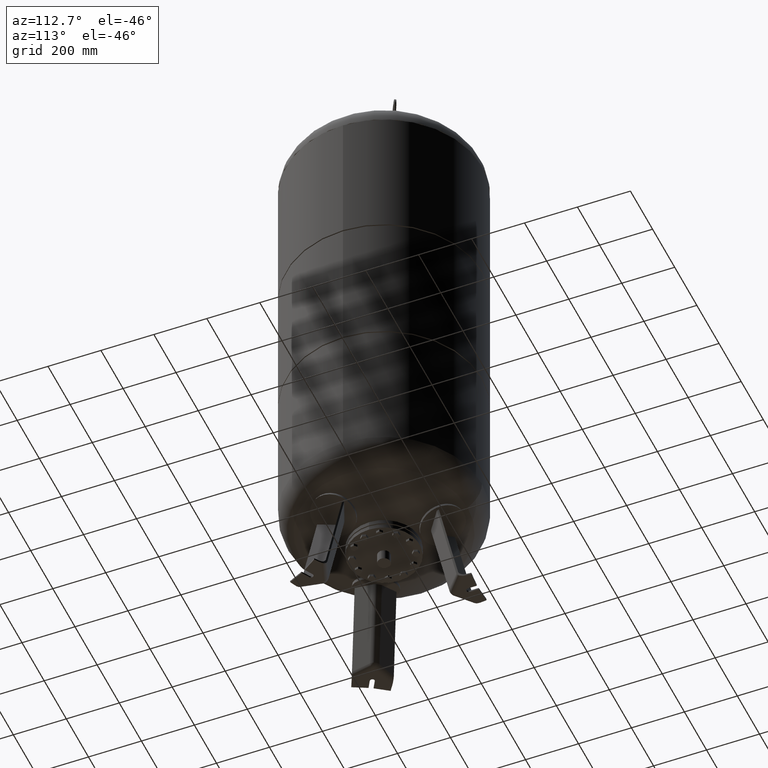
[diagram: clean part render]
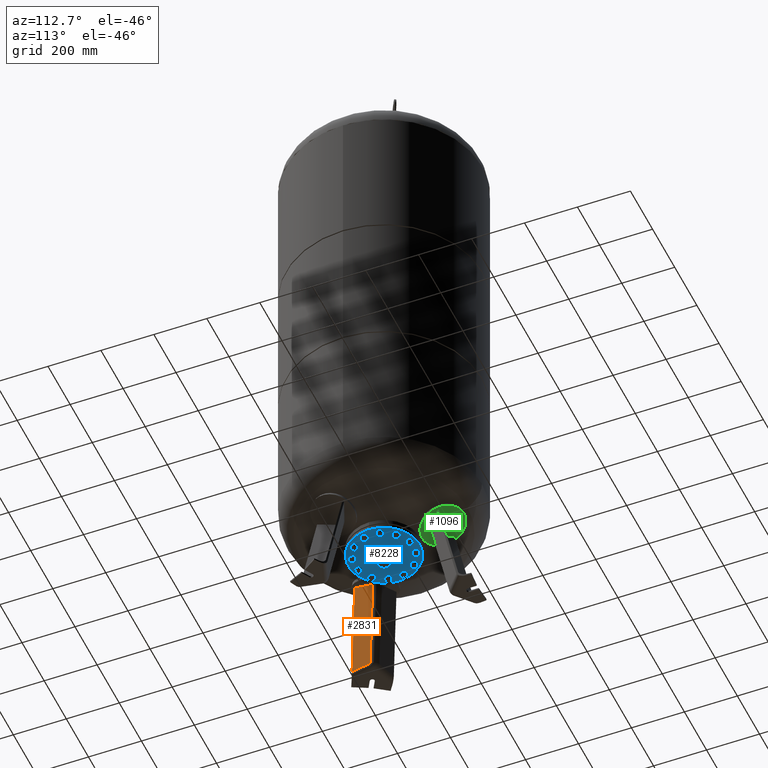
[diagram: same view with three faces highlighted in distinct colors, each labeled with its STEP entity id]
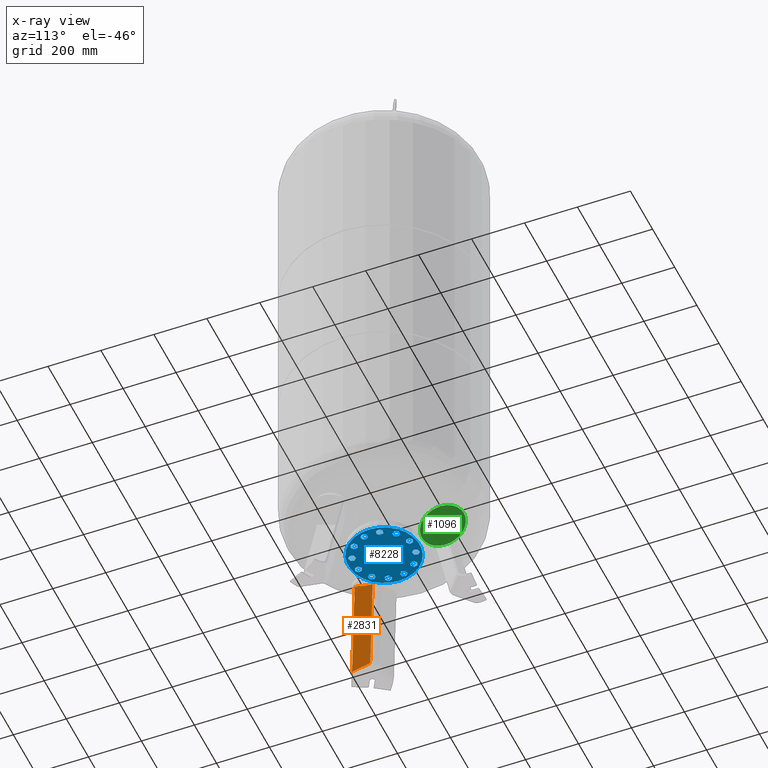
[diagram: x-ray of the same camera — body ghosted, the three highlighted faces saturated]
A machine part, auxiliary view with three faces highlighted in distinct colors.
The next image is the same camera in x-ray (body ghosted, the three faces saturated) — at least one of them is partly hidden behind the body in this view.
Their STEP definitions:

[orange] entity #2831 — the highlighted planar face has unit normal (0.9697, -0.1854, -0.1588).
#2148=CARTESIAN_POINT('',(-212.310092040547910,-141.210057248237430,21.029948423057281));
#2149=VERTEX_POINT('',#2148);
#2216=CARTESIAN_POINT('',(-162.367665870318090,-178.613505168794490,369.683830982885010));
#2217=VERTEX_POINT('',#2216);
#2225=CARTESIAN_POINT('',(-152.493107836384980,-106.674705315852450,345.982061508122970));
#2226=VERTEX_POINT('',#2225);
#2227=CARTESIAN_POINT('',(-152.493107836384980,-106.674705315852450,345.982061508122970));
#2228=CARTESIAN_POINT('',(-153.003537404700840,-110.175965198482400,346.953435462919860));
#2229=CARTESIAN_POINT('',(-153.509677728166280,-113.682305909172020,347.956934926011120));
#2230=CARTESIAN_POINT('',(-155.038434818138400,-124.369933104338800,351.101192125903480));
#2231=CARTESIAN_POINT('',(-156.048713479697880,-131.566367909792260,353.334982197884360));
#2232=CARTESIAN_POINT('',(-158.872911095725700,-152.034252945903320,359.988747504562350));
#2233=CARTESIAN_POINT('',(-160.649463305811250,-165.333219986767150,364.669037481009410));
#2234=CARTESIAN_POINT('',(-162.367665870318090,-178.613505168794490,369.683830982885010));
#2235=B_SPLINE_CURVE_WITH_KNOTS('',3,(#2227,#2228,#2229,#2230,#2231,#2232,#2233,#2234),.UNSPECIFIED.,.F.,.U.,(4,2,2,4),(5.453253502265779,6.515864870681246,8.687819827574995,12.681292855444173),.UNSPECIFIED.);
#2236=EDGE_CURVE('',#2226,#2217,#2235,.T.);
#2314=CARTESIAN_POINT('',(-226.547657155193120,-215.667840413704770,21.029948423057284));
#2315=VERTEX_POINT('',#2314);
#2316=CARTESIAN_POINT('',(-212.310092040547910,-141.210057248237430,21.029948423057281));
#2317=DIRECTION('',(-0.187813845079450,-0.982204642422582,4.686537E-017));
#2318=VECTOR('',#2317,75.806792138366546);
#2319=LINE('',#2316,#2318);
#2320=EDGE_CURVE('',#2149,#2315,#2319,.T.);
#2796=CARTESIAN_POINT('',(-226.547657155193120,-215.667840413704770,21.029948423057284));
#2797=DIRECTION('',(0.180056805991956,0.103955845408880,0.978147600733806));
#2798=VECTOR('',#2797,356.443017698216290);
#2799=LINE('',#2796,#2798);
#2800=EDGE_CURVE('',#2315,#2217,#2799,.T.);
#2815=CARTESIAN_POINT('',(-224.644894962710770,-129.698790578796260,-67.735293817669458));
#2816=DIRECTION('',(0.969740897595359,-0.185430570007245,-0.158802063077709));
#2817=DIRECTION('',(-0.180056805991956,-0.103955845408880,-0.978147600733806));
#2818=AXIS2_PLACEMENT_3D('',#2815,#2816,#2817);
#2819=PLANE('',#2818);
#2820=CARTESIAN_POINT('',(-152.493107836384980,-106.674705315852450,345.982061508122970));
#2821=DIRECTION('',(-0.180056805991956,-0.103955845408880,-0.978147600733805));
#2822=VECTOR('',#2821,332.211736594034330);
#2823=LINE('',#2820,#2822);
#2824=EDGE_CURVE('',#2226,#2149,#2823,.T.);
#2825=ORIENTED_EDGE('',*,*,#2824,.F.);
#2826=ORIENTED_EDGE('',*,*,#2236,.T.);
#2827=ORIENTED_EDGE('',*,*,#2800,.F.);
#2828=ORIENTED_EDGE('',*,*,#2320,.F.);
#2829=EDGE_LOOP('',(#2825,#2826,#2827,#2828));
#2830=FACE_OUTER_BOUND('',#2829,.T.);
#2831=ADVANCED_FACE('',(#2830),#2819,.T.);

[blue] entity #8228 — the highlighted planar face has unit normal (0, 0, -1).
#3042=CARTESIAN_POINT('',(135.0,-2.449294E-015,303.0));
#3043=VERTEX_POINT('',#3042);
#3059=CARTESIAN_POINT('',(-135.0,-1.898148E-014,303.0));
#3060=VERTEX_POINT('',#3059);
#3067=CARTESIAN_POINT('',(0.0,-2.449294E-015,303.0));
#3068=DIRECTION('',(0.0,0.0,1.0));
#3069=DIRECTION('',(1.0,0.0,0.0));
#3070=AXIS2_PLACEMENT_3D('',#3067,#3068,#3069);
#3071=CIRCLE('',#3070,135.0);
#3072=EDGE_CURVE('',#3060,#3043,#3071,.T.);
#4632=CARTESIAN_POINT('',(-24.149999999999999,-2.449294E-015,303.0));
#4633=VERTEX_POINT('',#4632);
#4649=CARTESIAN_POINT('',(24.149999999999999,-5.406816E-015,303.0));
#4650=VERTEX_POINT('',#4649);
#4657=CARTESIAN_POINT('',(0.0,-2.449294E-015,303.0));
#4658=DIRECTION('',(0.0,0.0,1.0));
#4659=DIRECTION('',(-1.0,0.0,0.0));
#4660=AXIS2_PLACEMENT_3D('',#4657,#4658,#4659);
#4661=CIRCLE('',#4660,24.149999999999999);
#4662=EDGE_CURVE('',#4633,#4650,#4661,.T.);
#4673=CARTESIAN_POINT('',(0.0,-2.449294E-015,303.0));
#4674=DIRECTION('',(0.0,0.0,1.0));
#4675=DIRECTION('',(-1.0,0.0,0.0));
#4676=AXIS2_PLACEMENT_3D('',#4673,#4674,#4675);
#4677=CIRCLE('',#4676,24.149999999999999);
#4678=EDGE_CURVE('',#4650,#4633,#4677,.T.);
#5718=CARTESIAN_POINT('',(-104.371630473436160,15.943200097079567,303.0));
#5719=VERTEX_POINT('',#5718);
#5720=CARTESIAN_POINT('',(-95.110174112441044,26.249772081662250,303.0));
#5721=VERTEX_POINT('',#5720);
#5722=CARTESIAN_POINT('',(-104.371630473436160,15.943200097079567,303.0));
#5723=DIRECTION('',(0.668388040388560,0.743812763715131,0.0));
#5724=VECTOR('',#5723,13.856406460551071);
#5725=LINE('',#5722,#5724);
#5726=EDGE_CURVE('',#5719,#5721,#5725,.T.);
#5758=CARTESIAN_POINT('',(-117.928111818515250,18.810570589450993,303.0));
#5759=VERTEX_POINT('',#5758);
#5760=CARTESIAN_POINT('',(-117.928111818515250,18.810570589450993,303.0));
#5761=DIRECTION('',(0.978354769230695,-0.206934640704629,0.0));
#5762=VECTOR('',#5761,13.856406460551010);
#5763=LINE('',#5760,#5762);
#5764=EDGE_CURVE('',#5759,#5719,#5763,.T.);
#5789=CARTESIAN_POINT('',(-122.223136802599300,31.984513066405068,303.0));
#5790=VERTEX_POINT('',#5789);
#5791=CARTESIAN_POINT('',(-122.223136802599300,31.984513066405068,303.0));
#5792=DIRECTION('',(0.309966728842136,-0.950747404419757,0.0));
#5793=VECTOR('',#5792,13.856406460551057);
#5794=LINE('',#5791,#5793);
#5795=EDGE_CURVE('',#5790,#5759,#5794,.T.);
#5820=CARTESIAN_POINT('',(-99.405199096525067,39.423714558616311,303.0));
#5821=VERTEX_POINT('',#5820);
#5822=CARTESIAN_POINT('',(-95.110174112441044,26.249772081662250,303.0));
#5823=DIRECTION('',(-0.309966728842134,0.950747404419758,0.0));
#5824=VECTOR('',#5823,13.856406460551035);
#5825=LINE('',#5822,#5824);
#5826=EDGE_CURVE('',#5721,#5821,#5825,.T.);
#5851=CARTESIAN_POINT('',(-112.961680441604220,42.291085050987718,303.0));
#5852=VERTEX_POINT('',#5851);
#5853=CARTESIAN_POINT('',(-99.405199096525067,39.423714558616311,303.0));
#5854=DIRECTION('',(-0.978354769230695,0.206934640704627,0.0));
#5855=VECTOR('',#5854,13.856406460551062);
#5856=LINE('',#5853,#5855);
#5857=EDGE_CURVE('',#5821,#5852,#5856,.T.);
#5882=CARTESIAN_POINT('',(-112.961680441604220,42.291085050987718,303.0));
#5883=DIRECTION('',(-0.668388040388560,-0.743812763715131,0.0));
#5884=VECTOR('',#5883,13.856406460551026);
#5885=LINE('',#5882,#5884);
#5886=EDGE_CURVE('',#5852,#5790,#5885,.T.);
#5918=CARTESIAN_POINT('',(-82.416883375857964,65.993031538407521,303.0));
#5919=VERTEX_POINT('',#5918);
#5920=CARTESIAN_POINT('',(-69.242940898903882,70.288056522491587,303.0));
#5921=VERTEX_POINT('',#5920);
#5922=CARTESIAN_POINT('',(-82.416883375857964,65.993031538407521,303.0));
#5923=DIRECTION('',(0.950747404419757,0.309966728842137,0.0));
#5924=VECTOR('',#5923,13.856406460551069);
#5925=LINE('',#5922,#5924);
#5926=EDGE_CURVE('',#5919,#5921,#5925,.T.);
#5958=CARTESIAN_POINT('',(-92.723455360440582,75.254487899402648,303.0));
#5959=VERTEX_POINT('',#5958);
#5960=CARTESIAN_POINT('',(-92.723455360440582,75.254487899402648,303.0));
#5961=DIRECTION('',(0.743812763715128,-0.668388040388563,0.0));
#5962=VECTOR('',#5961,13.856406460551032);
#5963=LINE('',#5960,#5962);
#5964=EDGE_CURVE('',#5959,#5919,#5963,.T.);
#5989=CARTESIAN_POINT('',(-89.856084868069175,88.810969244481754,303.0));
#5990=VERTEX_POINT('',#5989);
#5991=CARTESIAN_POINT('',(-89.856084868069175,88.810969244481754,303.0));
#5992=DIRECTION('',(-0.206934640704628,-0.978354769230695,0.0));
#5993=VECTOR('',#5992,13.856406460551021);
#5994=LINE('',#5991,#5993);
#5995=EDGE_CURVE('',#5990,#5959,#5994,.T.);
#6020=CARTESIAN_POINT('',(-66.375570406532475,83.844537867570708,303.0));
#6021=VERTEX_POINT('',#6020);
#6022=CARTESIAN_POINT('',(-69.242940898903882,70.288056522491587,303.0));
#6023=DIRECTION('',(0.206934640704627,0.978354769230695,0.0));
#6024=VECTOR('',#6023,13.856406460551035);
#6025=LINE('',#6022,#6024);
#6026=EDGE_CURVE('',#5921,#6021,#6025,.T.);
#6051=CARTESIAN_POINT('',(-76.682142391115121,93.105994228565805,303.0));
#6052=VERTEX_POINT('',#6051);
#6053=CARTESIAN_POINT('',(-66.375570406532475,83.844537867570708,303.0));
#6054=DIRECTION('',(-0.743812763715130,0.668388040388561,0.0));
#6055=VECTOR('',#6054,13.856406460551034);
#6056=LINE('',#6053,#6055);
#6057=EDGE_CURVE('',#6021,#6052,#6056,.T.);
#6082=CARTESIAN_POINT('',(-76.682142391115121,93.105994228565805,303.0));
#6083=DIRECTION('',(-0.950747404419757,-0.309966728842137,0.0));
#6084=VECTOR('',#6083,13.856406460551037);
#6085=LINE('',#6082,#6084);
#6086=EDGE_CURVE('',#6052,#5990,#6085,.T.);
#6118=CARTESIAN_POINT('',(-38.378598935028677,98.360083472937561,303.0));
#6119=VERTEX_POINT('',#6118);
#6120=CARTESIAN_POINT('',(-24.822117589949517,95.492712980566154,303.0));
#6121=VERTEX_POINT('',#6120);
#6122=CARTESIAN_POINT('',(-38.378598935028677,98.360083472937561,303.0));
#6123=DIRECTION('',(0.978354769230695,-0.206934640704627,0.0));
#6124=VECTOR('',#6123,13.856406460551073);
#6125=LINE('',#6122,#6124);
#6126=EDGE_CURVE('',#6119,#6121,#6125,.T.);
#6158=CARTESIAN_POINT('',(-42.673623919112671,111.534025949891600,303.0));
#6159=VERTEX_POINT('',#6158);
#6160=CARTESIAN_POINT('',(-42.673623919112671,111.534025949891600,303.0));
#6161=DIRECTION('',(0.309966728842133,-0.950747404419758,0.0));
#6162=VECTOR('',#6161,13.856406460551005);
#6163=LINE('',#6160,#6162);
#6164=EDGE_CURVE('',#6159,#6119,#6163,.T.);
#6189=CARTESIAN_POINT('',(-33.412167558117581,121.840597934474250,303.0));
#6190=VERTEX_POINT('',#6189);
#6191=CARTESIAN_POINT('',(-33.412167558117581,121.840597934474250,303.0));
#6192=DIRECTION('',(-0.668388040388560,-0.743812763715130,0.0));
#6193=VECTOR('',#6192,13.856406460551028);
#6194=LINE('',#6191,#6193);
#6195=EDGE_CURVE('',#6190,#6159,#6194,.T.);
#6220=CARTESIAN_POINT('',(-15.560661228954427,105.799284965148810,303.0));
#6221=VERTEX_POINT('',#6220);
#6222=CARTESIAN_POINT('',(-24.822117589949517,95.492712980566154,303.0));
#6223=DIRECTION('',(0.668388040388560,0.743812763715131,0.0));
#6224=VECTOR('',#6223,13.856406460551041);
#6225=LINE('',#6222,#6224);
#6226=EDGE_CURVE('',#6121,#6221,#6225,.T.);
#6251=CARTESIAN_POINT('',(-19.855686213038453,118.973227442102850,303.0));
#6252=VERTEX_POINT('',#6251);
#6253=CARTESIAN_POINT('',(-15.560661228954427,105.799284965148810,303.0));
#6254=DIRECTION('',(-0.309966728842135,0.950747404419758,0.0));
#6255=VECTOR('',#6254,13.856406460551016);
#6256=LINE('',#6253,#6255);
#6257=EDGE_CURVE('',#6221,#6252,#6256,.T.);
#6282=CARTESIAN_POINT('',(-19.855686213038453,118.973227442102850,303.0));
#6283=DIRECTION('',(-0.978354769230695,0.206934640704626,0.0));
#6284=VECTOR('',#6283,13.856406460551039);
#6285=LINE('',#6282,#6284);
#6286=EDGE_CURVE('',#6252,#6190,#6285,.T.);
#6318=CARTESIAN_POINT('',(15.943200097079568,104.371630473436160,303.0));
#6319=VERTEX_POINT('',#6318);
#6320=CARTESIAN_POINT('',(26.249772081662254,95.110174112441044,303.0));
#6321=VERTEX_POINT('',#6320);
#6322=CARTESIAN_POINT('',(15.943200097079568,104.371630473436160,303.0));
#6323=DIRECTION('',(0.743812763715131,-0.668388040388560,0.0));
#6324=VECTOR('',#6323,13.856406460551073);
#6325=LINE('',#6322,#6324);
#6326=EDGE_CURVE('',#6319,#6321,#6325,.T.);
#6358=CARTESIAN_POINT('',(18.810570589450997,117.928111818515250,303.0));
#6359=VERTEX_POINT('',#6358);
#6360=CARTESIAN_POINT('',(18.810570589450997,117.928111818515250,303.0));
#6361=DIRECTION('',(-0.206934640704629,-0.978354769230695,0.0));
#6362=VECTOR('',#6361,13.856406460551010);
#6363=LINE('',#6360,#6362);
#6364=EDGE_CURVE('',#6359,#6319,#6363,.T.);
#6389=CARTESIAN_POINT('',(31.984513066405071,122.223136802599300,303.0));
#6390=VERTEX_POINT('',#6389);
#6391=CARTESIAN_POINT('',(31.984513066405071,122.223136802599300,303.0));
#6392=DIRECTION('',(-0.950747404419757,-0.309966728842136,0.0));
#6393=VECTOR('',#6392,13.856406460551057);
#6394=LINE('',#6391,#6393);
#6395=EDGE_CURVE('',#6390,#6359,#6394,.T.);
#6420=CARTESIAN_POINT('',(39.423714558616311,99.405199096525067,303.0));
#6421=VERTEX_POINT('',#6420);
#6422=CARTESIAN_POINT('',(26.249772081662254,95.110174112441044,303.0));
#6423=DIRECTION('',(0.950747404419758,0.309966728842135,0.0));
#6424=VECTOR('',#6423,13.856406460551032);
#6425=LINE('',#6422,#6424);
#6426=EDGE_CURVE('',#6321,#6421,#6425,.T.);
#6451=CARTESIAN_POINT('',(42.291085050987718,112.961680441604220,303.0));
#6452=VERTEX_POINT('',#6451);
#6453=CARTESIAN_POINT('',(39.423714558616311,99.405199096525067,303.0));
#6454=DIRECTION('',(0.206934640704627,0.978354769230695,0.0));
#6455=VECTOR('',#6454,13.856406460551062);
#6456=LINE('',#6453,#6455);
#6457=EDGE_CURVE('',#6421,#6452,#6456,.T.);
#6482=CARTESIAN_POINT('',(42.291085050987718,112.961680441604220,303.0));
#6483=DIRECTION('',(-0.743812763715131,0.668388040388560,0.0));
#6484=VECTOR('',#6483,13.856406460551025);
#6485=LINE('',#6482,#6484);
#6486=EDGE_CURVE('',#6452,#6390,#6485,.T.);
#6518=CARTESIAN_POINT('',(65.993031538407507,82.416883375857992,303.0));
#6519=VERTEX_POINT('',#6518);
#6520=CARTESIAN_POINT('',(70.288056522491544,69.242940898903896,303.0));
#6521=VERTEX_POINT('',#6520);
#6522=CARTESIAN_POINT('',(65.993031538407507,82.416883375857992,303.0));
#6523=DIRECTION('',(0.309966728842135,-0.950747404419758,0.0));
#6524=VECTOR('',#6523,13.856406460551073);
#6525=LINE('',#6522,#6524);
#6526=EDGE_CURVE('',#6519,#6521,#6525,.T.);
#6558=CARTESIAN_POINT('',(75.254487899402591,92.723455360440624,303.0));
#6559=VERTEX_POINT('',#6558);
#6560=CARTESIAN_POINT('',(75.254487899402591,92.723455360440624,303.0));
#6561=DIRECTION('',(-0.668388040388561,-0.743812763715130,0.0));
#6562=VECTOR('',#6561,13.856406460551014);
#6563=LINE('',#6560,#6562);
#6564=EDGE_CURVE('',#6559,#6519,#6563,.T.);
#6589=CARTESIAN_POINT('',(88.810969244481726,89.856084868069217,303.0));
#6590=VERTEX_POINT('',#6589);
#6591=CARTESIAN_POINT('',(88.810969244481726,89.856084868069217,303.0));
#6592=DIRECTION('',(-0.978354769230695,0.206934640704627,0.0));
#6593=VECTOR('',#6592,13.856406460551048);
#6594=LINE('',#6591,#6593);
#6595=EDGE_CURVE('',#6590,#6559,#6594,.T.);
#6620=CARTESIAN_POINT('',(83.844537867570665,66.375570406532503,303.0));
#6621=VERTEX_POINT('',#6620);
#6622=CARTESIAN_POINT('',(70.288056522491544,69.242940898903896,303.0));
#6623=DIRECTION('',(0.978354769230695,-0.206934640704626,0.0));
#6624=VECTOR('',#6623,13.856406460551032);
#6625=LINE('',#6622,#6624);
#6626=EDGE_CURVE('',#6521,#6621,#6625,.T.);
#6651=CARTESIAN_POINT('',(93.105994228565763,76.682142391115150,303.0));
#6652=VERTEX_POINT('',#6651);
#6653=CARTESIAN_POINT('',(83.844537867570665,66.375570406532503,303.0));
#6654=DIRECTION('',(0.668388040388561,0.743812763715130,0.0));
#6655=VECTOR('',#6654,13.856406460551034);
#6656=LINE('',#6653,#6655);
#6657=EDGE_CURVE('',#6621,#6652,#6656,.T.);
#6682=CARTESIAN_POINT('',(93.105994228565763,76.682142391115150,303.0));
#6683=DIRECTION('',(-0.309966728842135,0.950747404419758,0.0));
#6684=VECTOR('',#6683,13.856406460551044);
#6685=LINE('',#6682,#6684);
#6686=EDGE_CURVE('',#6652,#6590,#6685,.T.);
#6718=CARTESIAN_POINT('',(98.360083472937561,38.378598935028677,303.0));
#6719=VERTEX_POINT('',#6718);
#6720=CARTESIAN_POINT('',(95.492712980566154,24.822117589949517,303.0));
#6721=VERTEX_POINT('',#6720);
#6722=CARTESIAN_POINT('',(98.360083472937561,38.378598935028677,303.0));
#6723=DIRECTION('',(-0.206934640704627,-0.978354769230695,0.0));
#6724=VECTOR('',#6723,13.856406460551073);
#6725=LINE('',#6722,#6724);
#6726=EDGE_CURVE('',#6719,#6721,#6725,.T.);
#6758=CARTESIAN_POINT('',(111.534025949891600,42.673623919112686,303.0));
#6759=VERTEX_POINT('',#6758);
#6760=CARTESIAN_POINT('',(111.534025949891600,42.673623919112686,303.0));
#6761=DIRECTION('',(-0.950747404419758,-0.309966728842134,0.0));
#6762=VECTOR('',#6761,13.856406460551010);
#6763=LINE('',#6760,#6762);
#6764=EDGE_CURVE('',#6759,#6719,#6763,.T.);
#6789=CARTESIAN_POINT('',(121.840597934474250,33.412167558117595,303.0));
#6790=VERTEX_POINT('',#6789);
#6791=CARTESIAN_POINT('',(121.840597934474250,33.412167558117595,303.0));
#6792=DIRECTION('',(-0.743812763715130,0.668388040388560,0.0));
#6793=VECTOR('',#6792,13.856406460551028);
#6794=LINE('',#6791,#6793);
#6795=EDGE_CURVE('',#6790,#6759,#6794,.T.);
#6820=CARTESIAN_POINT('',(105.799284965148800,15.560661228954428,303.0));
#6821=VERTEX_POINT('',#6820);
#6822=CARTESIAN_POINT('',(95.492712980566154,24.822117589949517,303.0));
#6823=DIRECTION('',(0.743812763715130,-0.668388040388560,0.0));
#6824=VECTOR('',#6823,13.856406460551028);
#6825=LINE('',#6822,#6824);
#6826=EDGE_CURVE('',#6721,#6821,#6825,.T.);
#6851=CARTESIAN_POINT('',(118.973227442102840,19.855686213038460,303.0));
#6852=VERTEX_POINT('',#6851);
#6853=CARTESIAN_POINT('',(105.799284965148800,15.560661228954428,303.0));
#6854=DIRECTION('',(0.950747404419757,0.309966728842136,0.0));
#6855=VECTOR('',#6854,13.856406460551018);
#6856=LINE('',#6853,#6855);
#6857=EDGE_CURVE('',#6821,#6852,#6856,.T.);
#6882=CARTESIAN_POINT('',(118.973227442102840,19.855686213038460,303.0));
#6883=DIRECTION('',(0.206934640704627,0.978354769230695,0.0));
#6884=VECTOR('',#6883,13.856406460551048);
#6885=LINE('',#6882,#6884);
#6886=EDGE_CURVE('',#6852,#6790,#6885,.T.);
#6918=CARTESIAN_POINT('',(104.371630473436170,-15.943200097079561,303.0));
#6919=VERTEX_POINT('',#6918);
#6920=CARTESIAN_POINT('',(95.110174112441058,-26.249772081662240,303.0));
#6921=VERTEX_POINT('',#6920);
#6922=CARTESIAN_POINT('',(104.371630473436170,-15.943200097079561,303.0));
#6923=DIRECTION('',(-0.668388040388560,-0.743812763715131,0.0));
#6924=VECTOR('',#6923,13.856406460551067);
#6925=LINE('',#6922,#6924);
#6926=EDGE_CURVE('',#6919,#6921,#6925,.T.);
#6958=CARTESIAN_POINT('',(117.928111818515260,-18.810570589450993,303.0));
#6959=VERTEX_POINT('',#6958);
#6960=CARTESIAN_POINT('',(117.928111818515260,-18.810570589450993,303.0));
#6961=DIRECTION('',(-0.978354769230695,0.206934640704630,0.0));
#6962=VECTOR('',#6961,13.856406460551012);
#6963=LINE('',#6960,#6962);
#6964=EDGE_CURVE('',#6959,#6919,#6963,.T.);
#6989=CARTESIAN_POINT('',(122.223136802599300,-31.984513066405047,303.0));
#6990=VERTEX_POINT('',#6989);
#6991=CARTESIAN_POINT('',(122.223136802599300,-31.984513066405047,303.0));
#6992=DIRECTION('',(-0.309966728842136,0.950747404419758,0.0));
#6993=VECTOR('',#6992,13.856406460551032);
#6994=LINE('',#6991,#6993);
#6995=EDGE_CURVE('',#6990,#6959,#6994,.T.);
#7020=CARTESIAN_POINT('',(99.405199096525081,-39.423714558616304,303.0));
#7021=VERTEX_POINT('',#7020);
#7022=CARTESIAN_POINT('',(95.110174112441058,-26.249772081662240,303.0));
#7023=DIRECTION('',(0.309966728842134,-0.950747404419758,0.0));
#7024=VECTOR('',#7023,13.856406460551037);
#7025=LINE('',#7022,#7024);
#7026=EDGE_CURVE('',#6921,#7021,#7025,.T.);
#7051=CARTESIAN_POINT('',(112.961680441604220,-42.291085050987704,303.0));
#7052=VERTEX_POINT('',#7051);
#7053=CARTESIAN_POINT('',(99.405199096525081,-39.423714558616304,303.0));
#7054=DIRECTION('',(0.978354769230695,-0.206934640704627,0.0));
#7055=VECTOR('',#7054,13.856406460551046);
#7056=LINE('',#7053,#7055);
#7057=EDGE_CURVE('',#7021,#7052,#7056,.T.);
#7082=CARTESIAN_POINT('',(112.961680441604220,-42.291085050987704,303.0));
#7083=DIRECTION('',(0.668388040388560,0.743812763715131,0.0));
#7084=VECTOR('',#7083,13.856406460551034);
#7085=LINE('',#7082,#7084);
#7086=EDGE_CURVE('',#7052,#6990,#7085,.T.);
#7118=CARTESIAN_POINT('',(82.416883375857992,-65.993031538407507,303.0));
#7119=VERTEX_POINT('',#7118);
#7120=CARTESIAN_POINT('',(69.242940898903910,-70.288056522491530,303.0));
#7121=VERTEX_POINT('',#7120);
#7122=CARTESIAN_POINT('',(82.416883375857992,-65.993031538407507,303.0));
#7123=DIRECTION('',(-0.950747404419758,-0.309966728842134,0.0));
#7124=VECTOR('',#7123,13.856406460551055);
#7125=LINE('',#7122,#7124);
#7126=EDGE_CURVE('',#7119,#7121,#7125,.T.);
#7158=CARTESIAN_POINT('',(92.723455360440624,-75.254487899402591,303.0));
#7159=VERTEX_POINT('',#7158);
#7160=CARTESIAN_POINT('',(92.723455360440624,-75.254487899402591,303.0));
#7161=DIRECTION('',(-0.743812763715130,0.668388040388561,0.0));
#7162=VECTOR('',#7161,13.856406460551014);
#7163=LINE('',#7160,#7162);
#7164=EDGE_CURVE('',#7159,#7119,#7163,.T.);
#7189=CARTESIAN_POINT('',(89.856084868069217,-88.810969244481726,303.0));
#7190=VERTEX_POINT('',#7189);
#7191=CARTESIAN_POINT('',(89.856084868069217,-88.810969244481726,303.0));
#7192=DIRECTION('',(0.206934640704627,0.978354769230695,0.0));
#7193=VECTOR('',#7192,13.856406460551048);
#7194=LINE('',#7191,#7193);
#7195=EDGE_CURVE('',#7190,#7159,#7194,.T.);
#7220=CARTESIAN_POINT('',(66.375570406532503,-83.844537867570665,303.0));
#7221=VERTEX_POINT('',#7220);
#7222=CARTESIAN_POINT('',(69.242940898903910,-70.288056522491530,303.0));
#7223=DIRECTION('',(-0.206934640704627,-0.978354769230695,0.0));
#7224=VECTOR('',#7223,13.856406460551048);
#7225=LINE('',#7222,#7224);
#7226=EDGE_CURVE('',#7121,#7221,#7225,.T.);
#7251=CARTESIAN_POINT('',(76.682142391115164,-93.105994228565763,303.0));
#7252=VERTEX_POINT('',#7251);
#7253=CARTESIAN_POINT('',(66.375570406532503,-83.844537867570665,303.0));
#7254=DIRECTION('',(0.743812763715130,-0.668388040388560,0.0));
#7255=VECTOR('',#7254,13.856406460551044);
#7256=LINE('',#7253,#7255);
#7257=EDGE_CURVE('',#7221,#7252,#7256,.T.);
#7282=CARTESIAN_POINT('',(76.682142391115164,-93.105994228565763,303.0));
#7283=DIRECTION('',(0.950747404419758,0.309966728842136,0.0));
#7284=VECTOR('',#7283,13.856406460551032);
#7285=LINE('',#7282,#7284);
#7286=EDGE_CURVE('',#7252,#7190,#7285,.T.);
#7318=CARTESIAN_POINT('',(38.378598935028691,-98.360083472937561,303.0));
#7319=VERTEX_POINT('',#7318);
#7320=CARTESIAN_POINT('',(24.822117589949528,-95.492712980566125,303.0));
#7321=VERTEX_POINT('',#7320);
#7322=CARTESIAN_POINT('',(38.378598935028691,-98.360083472937561,303.0));
#7323=DIRECTION('',(-0.978354769230695,0.206934640704629,0.0));
#7324=VECTOR('',#7323,13.856406460551083);
#7325=LINE('',#7322,#7324);
#7326=EDGE_CURVE('',#7319,#7321,#7325,.T.);
#7358=CARTESIAN_POINT('',(42.673623919112700,-111.534025949891600,303.0));
#7359=VERTEX_POINT('',#7358);
#7360=CARTESIAN_POINT('',(42.673623919112700,-111.534025949891600,303.0));
#7361=DIRECTION('',(-0.309966728842134,0.950747404419758,0.0));
#7362=VECTOR('',#7361,13.856406460551010);
#7363=LINE('',#7360,#7362);
#7364=EDGE_CURVE('',#7359,#7319,#7363,.T.);
#7389=CARTESIAN_POINT('',(33.412167558117609,-121.840597934474260,303.0));
#7390=VERTEX_POINT('',#7389);
#7391=CARTESIAN_POINT('',(33.412167558117609,-121.840597934474260,303.0));
#7392=DIRECTION('',(0.668388040388560,0.743812763715131,0.0));
#7393=VECTOR('',#7392,13.856406460551041);
#7394=LINE('',#7391,#7393);
#7395=EDGE_CURVE('',#7390,#7359,#7394,.T.);
#7420=CARTESIAN_POINT('',(15.560661228954435,-105.799284965148800,303.0));
#7421=VERTEX_POINT('',#7420);
#7422=CARTESIAN_POINT('',(24.822117589949528,-95.492712980566125,303.0));
#7423=DIRECTION('',(-0.668388040388559,-0.743812763715131,0.0));
#7424=VECTOR('',#7423,13.856406460551051);
#7425=LINE('',#7422,#7424);
#7426=EDGE_CURVE('',#7321,#7421,#7425,.T.);
#7451=CARTESIAN_POINT('',(19.855686213038474,-118.973227442102850,303.0));
#7452=VERTEX_POINT('',#7451);
#7453=CARTESIAN_POINT('',(15.560661228954435,-105.799284965148800,303.0));
#7454=DIRECTION('',(0.309966728842136,-0.950747404419757,0.0));
#7455=VECTOR('',#7454,13.856406460551034);
#7456=LINE('',#7453,#7455);
#7457=EDGE_CURVE('',#7421,#7452,#7456,.T.);
#7482=CARTESIAN_POINT('',(19.855686213038474,-118.973227442102850,303.0));
#7483=DIRECTION('',(0.978354769230695,-0.206934640704627,0.0));
#7484=VECTOR('',#7483,13.856406460551048);
#7485=LINE('',#7482,#7484);
#7486=EDGE_CURVE('',#7452,#7390,#7485,.T.);
#7518=CARTESIAN_POINT('',(-15.943200097079542,-104.371630473436180,303.0));
#7519=VERTEX_POINT('',#7518);
#7520=CARTESIAN_POINT('',(-26.249772081662211,-95.110174112441058,303.0));
#7521=VERTEX_POINT('',#7520);
#7522=CARTESIAN_POINT('',(-15.943200097079542,-104.371630473436180,303.0));
#7523=DIRECTION('',(-0.743812763715130,0.668388040388561,0.0));
#7524=VECTOR('',#7523,13.856406460551069);
#7525=LINE('',#7522,#7524);
#7526=EDGE_CURVE('',#7519,#7521,#7525,.T.);
#7558=CARTESIAN_POINT('',(-18.810570589450968,-117.928111818515260,303.0));
#7559=VERTEX_POINT('',#7558);
#7560=CARTESIAN_POINT('',(-18.810570589450968,-117.928111818515260,303.0));
#7561=DIRECTION('',(0.206934640704629,0.978354769230695,0.0));
#7562=VECTOR('',#7561,13.856406460550996);
#7563=LINE('',#7560,#7562);
#7564=EDGE_CURVE('',#7559,#7519,#7563,.T.);
#7589=CARTESIAN_POINT('',(-31.984513066405029,-122.223136802599300,303.0));
#7590=VERTEX_POINT('',#7589);
#7591=CARTESIAN_POINT('',(-31.984513066405029,-122.223136802599300,303.0));
#7592=DIRECTION('',(0.950747404419758,0.309966728842135,0.0));
#7593=VECTOR('',#7592,13.856406460551039);
#7594=LINE('',#7591,#7593);
#7595=EDGE_CURVE('',#7590,#7559,#7594,.T.);
#7620=CARTESIAN_POINT('',(-39.423714558616268,-99.405199096525095,303.0));
#7621=VERTEX_POINT('',#7620);
#7622=CARTESIAN_POINT('',(-26.249772081662211,-95.110174112441058,303.0));
#7623=DIRECTION('',(-0.950747404419758,-0.309966728842136,0.0));
#7624=VECTOR('',#7623,13.856406460551035);
#7625=LINE('',#7622,#7624);
#7626=EDGE_CURVE('',#7521,#7621,#7625,.T.);
#7651=CARTESIAN_POINT('',(-42.291085050987682,-112.961680441604220,303.0));
#7652=VERTEX_POINT('',#7651);
#7653=CARTESIAN_POINT('',(-39.423714558616268,-99.405199096525095,303.0));
#7654=DIRECTION('',(-0.206934640704628,-0.978354769230695,0.0));
#7655=VECTOR('',#7654,13.856406460551035);
#7656=LINE('',#7653,#7655);
#7657=EDGE_CURVE('',#7621,#7652,#7656,.T.);
#7682=CARTESIAN_POINT('',(-42.291085050987682,-112.961680441604220,303.0));
#7683=DIRECTION('',(0.743812763715131,-0.668388040388560,0.0));
#7684=VECTOR('',#7683,13.856406460551030);
#7685=LINE('',#7682,#7684);
#7686=EDGE_CURVE('',#7652,#7590,#7685,.T.);
#7718=CARTESIAN_POINT('',(-65.993031538407493,-82.416883375858006,303.0));
#7719=VERTEX_POINT('',#7718);
#7720=CARTESIAN_POINT('',(-70.288056522491530,-69.242940898903925,303.0));
#7721=VERTEX_POINT('',#7720);
#7722=CARTESIAN_POINT('',(-65.993031538407493,-82.416883375858006,303.0));
#7723=DIRECTION('',(-0.309966728842135,0.950747404419758,0.0));
#7724=VECTOR('',#7723,13.856406460551060);
#7725=LINE('',#7722,#7724);
#7726=EDGE_CURVE('',#7719,#7721,#7725,.T.);
#7758=CARTESIAN_POINT('',(-75.254487899402591,-92.723455360440639,303.0));
#7759=VERTEX_POINT('',#7758);
#7760=CARTESIAN_POINT('',(-75.254487899402591,-92.723455360440639,303.0));
#7761=DIRECTION('',(0.668388040388561,0.743812763715130,0.0));
#7762=VECTOR('',#7761,13.856406460551023);
#7763=LINE('',#7760,#7762);
#7764=EDGE_CURVE('',#7759,#7719,#7763,.T.);
#7789=CARTESIAN_POINT('',(-88.810969244481711,-89.856084868069246,303.0));
#7790=VERTEX_POINT('',#7789);
#7791=CARTESIAN_POINT('',(-88.810969244481711,-89.856084868069246,303.0));
#7792=DIRECTION('',(0.978354769230695,-0.206934640704626,0.0));
#7793=VECTOR('',#7792,13.856406460551032);
#7794=LINE('',#7791,#7793);
#7795=EDGE_CURVE('',#7790,#7759,#7794,.T.);
#7820=CARTESIAN_POINT('',(-83.844537867570651,-66.375570406532518,303.0));
#7821=VERTEX_POINT('',#7820);
#7822=CARTESIAN_POINT('',(-70.288056522491530,-69.242940898903925,303.0));
#7823=DIRECTION('',(-0.978354769230695,0.206934640704627,0.0));
#7824=VECTOR('',#7823,13.856406460551035);
#7825=LINE('',#7822,#7824);
#7826=EDGE_CURVE('',#7721,#7821,#7825,.T.);
#7851=CARTESIAN_POINT('',(-93.105994228565748,-76.682142391115178,303.0));
#7852=VERTEX_POINT('',#7851);
#7853=CARTESIAN_POINT('',(-83.844537867570651,-66.375570406532518,303.0));
#7854=DIRECTION('',(-0.668388040388560,-0.743812763715130,0.0));
#7855=VECTOR('',#7854,13.856406460551044);
#7856=LINE('',#7853,#7855);
#7857=EDGE_CURVE('',#7821,#7852,#7856,.T.);
#7882=CARTESIAN_POINT('',(-93.105994228565748,-76.682142391115178,303.0));
#7883=DIRECTION('',(0.309966728842135,-0.950747404419758,0.0));
#7884=VECTOR('',#7883,13.856406460551044);
#7885=LINE('',#7882,#7884);
#7886=EDGE_CURVE('',#7852,#7790,#7885,.T.);
#7918=CARTESIAN_POINT('',(-98.360083472937546,-38.378598935028691,303.0));
#7919=VERTEX_POINT('',#7918);
#7920=CARTESIAN_POINT('',(-95.492712980566125,-24.822117589949539,303.0));
#7921=VERTEX_POINT('',#7920);
#7922=CARTESIAN_POINT('',(-98.360083472937546,-38.378598935028691,303.0));
#7923=DIRECTION('',(0.206934640704628,0.978354769230695,0.0));
#7924=VECTOR('',#7923,13.856406460551069);
#7925=LINE('',#7922,#7924);
#7926=EDGE_CURVE('',#7919,#7921,#7925,.T.);
#7958=CARTESIAN_POINT('',(-111.534025949891590,-42.673623919112693,303.0));
#7959=VERTEX_POINT('',#7958);
#7960=CARTESIAN_POINT('',(-111.534025949891590,-42.673623919112693,303.0));
#7961=DIRECTION('',(0.950747404419758,0.309966728842134,0.0));
#7962=VECTOR('',#7961,13.856406460551009);
#7963=LINE('',#7960,#7962);
#7964=EDGE_CURVE('',#7959,#7919,#7963,.T.);
#7989=CARTESIAN_POINT('',(-121.840597934474250,-33.412167558117609,303.0));
#7990=VERTEX_POINT('',#7989);
#7991=CARTESIAN_POINT('',(-121.840597934474250,-33.412167558117609,303.0));
#7992=DIRECTION('',(0.743812763715131,-0.668388040388560,0.0));
#7993=VECTOR('',#7992,13.856406460551035);
#7994=LINE('',#7991,#7993);
#7995=EDGE_CURVE('',#7990,#7959,#7994,.T.);
#8020=CARTESIAN_POINT('',(-105.799284965148800,-15.560661228954446,303.0));
#8021=VERTEX_POINT('',#8020);
#8022=CARTESIAN_POINT('',(-95.492712980566125,-24.822117589949539,303.0));
#8023=DIRECTION('',(-0.743812763715131,0.668388040388559,0.0));
#8024=VECTOR('',#8023,13.856406460551051);
#8025=LINE('',#8022,#8024);
#8026=EDGE_CURVE('',#7921,#8021,#8025,.T.);
#8051=CARTESIAN_POINT('',(-118.973227442102850,-19.855686213038485,303.0));
#8052=VERTEX_POINT('',#8051);
#8053=CARTESIAN_POINT('',(-105.799284965148800,-15.560661228954446,303.0));
#8054=DIRECTION('',(-0.950747404419757,-0.309966728842136,0.0));
#8055=VECTOR('',#8054,13.856406460551034);
#8056=LINE('',#8053,#8055);
#8057=EDGE_CURVE('',#8021,#8052,#8056,.T.);
#8082=CARTESIAN_POINT('',(-118.973227442102850,-19.855686213038485,303.0));
#8083=DIRECTION('',(-0.206934640704626,-0.978354769230695,0.0));
#8084=VECTOR('',#8083,13.856406460551035);
#8085=LINE('',#8082,#8084);
#8086=EDGE_CURVE('',#8052,#7990,#8085,.T.);
#8113=CARTESIAN_POINT('',(67.500000000000000,-2.449294E-015,303.0));
#8114=DIRECTION('',(0.0,0.0,-1.0));
#8115=DIRECTION('',(0.0,1.0,0.0));
#8116=AXIS2_PLACEMENT_3D('',#8113,#8114,#8115);
#8117=PLANE('',#8116);
#8118=CARTESIAN_POINT('',(0.0,-2.449294E-015,303.0));
#8119=DIRECTION('',(0.0,0.0,1.0));
#8120=DIRECTION('',(1.0,0.0,0.0));
#8121=AXIS2_PLACEMENT_3D('',#8118,#8119,#8120);
#8122=CIRCLE('',#8121,135.0);
#8123=EDGE_CURVE('',#3043,#3060,#8122,.T.);
#8124=ORIENTED_EDGE('',*,*,#8123,.F.);
#8125=ORIENTED_EDGE('',*,*,#3072,.F.);
#8126=EDGE_LOOP('',(#8124,#8125));
#8127=FACE_OUTER_BOUND('',#8126,.T.);
#8128=ORIENTED_EDGE('',*,*,#4678,.T.);
#8129=ORIENTED_EDGE('',*,*,#4662,.T.);
#8130=EDGE_LOOP('',(#8128,#8129));
#8131=FACE_BOUND('',#8130,.T.);
#8132=ORIENTED_EDGE('',*,*,#5726,.T.);
#8133=ORIENTED_EDGE('',*,*,#5826,.T.);
#8134=ORIENTED_EDGE('',*,*,#5857,.T.);
#8135=ORIENTED_EDGE('',*,*,#5886,.T.);
#8136=ORIENTED_EDGE('',*,*,#5795,.T.);
#8137=ORIENTED_EDGE('',*,*,#5764,.T.);
#8138=EDGE_LOOP('',(#8132,#8133,#8134,#8135,#8136,#8137));
#8139=FACE_BOUND('',#8138,.T.);
#8140=ORIENTED_EDGE('',*,*,#5926,.T.);
#8141=ORIENTED_EDGE('',*,*,#6026,.T.);
#8142=ORIENTED_EDGE('',*,*,#6057,.T.);
#8143=ORIENTED_EDGE('',*,*,#6086,.T.);
#8144=ORIENTED_EDGE('',*,*,#5995,.T.);
#8145=ORIENTED_EDGE('',*,*,#5964,.T.);
#8146=EDGE_LOOP('',(#8140,#8141,#8142,#8143,#8144,#8145));
#8147=FACE_BOUND('',#8146,.T.);
#8148=ORIENTED_EDGE('',*,*,#6126,.T.);
#8149=ORIENTED_EDGE('',*,*,#6226,.T.);
#8150=ORIENTED_EDGE('',*,*,#6257,.T.);
#8151=ORIENTED_EDGE('',*,*,#6286,.T.);
#8152=ORIENTED_EDGE('',*,*,#6195,.T.);
#8153=ORIENTED_EDGE('',*,*,#6164,.T.);
#8154=EDGE_LOOP('',(#8148,#8149,#8150,#8151,#8152,#8153));
#8155=FACE_BOUND('',#8154,.T.);
#8156=ORIENTED_EDGE('',*,*,#6326,.T.);
#8157=ORIENTED_EDGE('',*,*,#6426,.T.);
#8158=ORIENTED_EDGE('',*,*,#6457,.T.);
#8159=ORIENTED_EDGE('',*,*,#6486,.T.);
#8160=ORIENTED_EDGE('',*,*,#6395,.T.);
#8161=ORIENTED_EDGE('',*,*,#6364,.T.);
#8162=EDGE_LOOP('',(#8156,#8157,#8158,#8159,#8160,#8161));
#8163=FACE_BOUND('',#8162,.T.);
#8164=ORIENTED_EDGE('',*,*,#6526,.T.);
#8165=ORIENTED_EDGE('',*,*,#6626,.T.);
#8166=ORIENTED_EDGE('',*,*,#6657,.T.);
#8167=ORIENTED_EDGE('',*,*,#6686,.T.);
#8168=ORIENTED_EDGE('',*,*,#6595,.T.);
#8169=ORIENTED_EDGE('',*,*,#6564,.T.);
#8170=EDGE_LOOP('',(#8164,#8165,#8166,#8167,#8168,#8169));
#8171=FACE_BOUND('',#8170,.T.);
#8172=ORIENTED_EDGE('',*,*,#6726,.T.);
#8173=ORIENTED_EDGE('',*,*,#6826,.T.);
#8174=ORIENTED_EDGE('',*,*,#6857,.T.);
#8175=ORIENTED_EDGE('',*,*,#6886,.T.);
#8176=ORIENTED_EDGE('',*,*,#6795,.T.);
#8177=ORIENTED_EDGE('',*,*,#6764,.T.);
#8178=EDGE_LOOP('',(#8172,#8173,#8174,#8175,#8176,#8177));
#8179=FACE_BOUND('',#8178,.T.);
#8180=ORIENTED_EDGE('',*,*,#6926,.T.);
#8181=ORIENTED_EDGE('',*,*,#7026,.T.);
#8182=ORIENTED_EDGE('',*,*,#7057,.T.);
#8183=ORIENTED_EDGE('',*,*,#7086,.T.);
#8184=ORIENTED_EDGE('',*,*,#6995,.T.);
#8185=ORIENTED_EDGE('',*,*,#6964,.T.);
#8186=EDGE_LOOP('',(#8180,#8181,#8182,#8183,#8184,#8185));
#8187=FACE_BOUND('',#8186,.T.);
#8188=ORIENTED_EDGE('',*,*,#7126,.T.);
#8189=ORIENTED_EDGE('',*,*,#7226,.T.);
#8190=ORIENTED_EDGE('',*,*,#7257,.T.);
#8191=ORIENTED_EDGE('',*,*,#7286,.T.);
#8192=ORIENTED_EDGE('',*,*,#7195,.T.);
#8193=ORIENTED_EDGE('',*,*,#7164,.T.);
#8194=EDGE_LOOP('',(#8188,#8189,#8190,#8191,#8192,#8193));
#8195=FACE_BOUND('',#8194,.T.);
#8196=ORIENTED_EDGE('',*,*,#7326,.T.);
#8197=ORIENTED_EDGE('',*,*,#7426,.T.);
#8198=ORIENTED_EDGE('',*,*,#7457,.T.);
#8199=ORIENTED_EDGE('',*,*,#7486,.T.);
#8200=ORIENTED_EDGE('',*,*,#7395,.T.);
#8201=ORIENTED_EDGE('',*,*,#7364,.T.);
#8202=EDGE_LOOP('',(#8196,#8197,#8198,#8199,#8200,#8201));
#8203=FACE_BOUND('',#8202,.T.);
#8204=ORIENTED_EDGE('',*,*,#7526,.T.);
#8205=ORIENTED_EDGE('',*,*,#7626,.T.);
#8206=ORIENTED_EDGE('',*,*,#7657,.T.);
#8207=ORIENTED_EDGE('',*,*,#7686,.T.);
#8208=ORIENTED_EDGE('',*,*,#7595,.T.);
#8209=ORIENTED_EDGE('',*,*,#7564,.T.);
#8210=EDGE_LOOP('',(#8204,#8205,#8206,#8207,#8208,#8209));
#8211=FACE_BOUND('',#8210,.T.);
#8212=ORIENTED_EDGE('',*,*,#7726,.T.);
#8213=ORIENTED_EDGE('',*,*,#7826,.T.);
#8214=ORIENTED_EDGE('',*,*,#7857,.T.);
#8215=ORIENTED_EDGE('',*,*,#7886,.T.);
#8216=ORIENTED_EDGE('',*,*,#7795,.T.);
#8217=ORIENTED_EDGE('',*,*,#7764,.T.);
#8218=EDGE_LOOP('',(#8212,#8213,#8214,#8215,#8216,#8217));
#8219=FACE_BOUND('',#8218,.T.);
#8220=ORIENTED_EDGE('',*,*,#7926,.T.);
#8221=ORIENTED_EDGE('',*,*,#8026,.T.);
#8222=ORIENTED_EDGE('',*,*,#8057,.T.);
#8223=ORIENTED_EDGE('',*,*,#8086,.T.);
#8224=ORIENTED_EDGE('',*,*,#7995,.T.);
#8225=ORIENTED_EDGE('',*,*,#7964,.T.);
#8226=EDGE_LOOP('',(#8220,#8221,#8222,#8223,#8224,#8225));
#8227=FACE_BOUND('',#8226,.T.);
#8228=ADVANCED_FACE('',(#8127,#8131,#8139,#8147,#8155,#8163,#8171,#8179,#8187,#8195,#8203,#8211,#8219,#8227),#8117,.T.);

[green] entity #1096 — the highlighted spherical surface has radius 594 mm.
#1004=CARTESIAN_POINT('',(0.000000156607026,301.827032119546740,393.757372581269070));
#1005=VERTEX_POINT('',#1004);
#1014=CARTESIAN_POINT('',(0.000000156606966,143.118359615022430,332.834821158567990));
#1015=VERTEX_POINT('',#1014);
#1016=CARTESIAN_POINT('',(0.000000156607002,222.472695867284590,363.296096869918470));
#1017=DIRECTION('',(-5.681491E-017,0.358367949545300,-0.933580426497202));
#1018=DIRECTION('',(2.858266E-016,0.933580426497202,0.358367949545300));
#1019=AXIS2_PLACEMENT_3D('',#1016,#1017,#1018);
#1020=CIRCLE('',#1019,85.0);
#1021=EDGE_CURVE('',#1015,#1005,#1020,.T.);
#1077=CARTESIAN_POINT('',(0.000000156607002,222.472695867284590,363.296096869918470));
#1078=DIRECTION('',(-5.681491E-017,0.358367949545300,-0.933580426497202));
#1079=DIRECTION('',(2.858266E-016,0.933580426497202,0.358367949545300));
#1080=AXIS2_PLACEMENT_3D('',#1077,#1078,#1079);
#1081=CIRCLE('',#1080,85.0);
#1082=EDGE_CURVE('',#1005,#1015,#1081,.T.);
#1087=CARTESIAN_POINT('',(0.000000156607029,11.792875141696015,912.135793993800230));
#1088=DIRECTION('',(1.0,0.0,0.0));
#1089=DIRECTION('',(2.858266E-016,0.933580426497202,0.358367949545300));
#1090=AXIS2_PLACEMENT_3D('',#1087,#1088,#1089);
#1091=SPHERICAL_SURFACE('',#1090,594.0);
#1092=ORIENTED_EDGE('',*,*,#1082,.T.);
#1093=ORIENTED_EDGE('',*,*,#1021,.T.);
#1094=EDGE_LOOP('',(#1092,#1093));
#1095=FACE_OUTER_BOUND('',#1094,.T.);
#1096=ADVANCED_FACE('',(#1095),#1091,.T.);